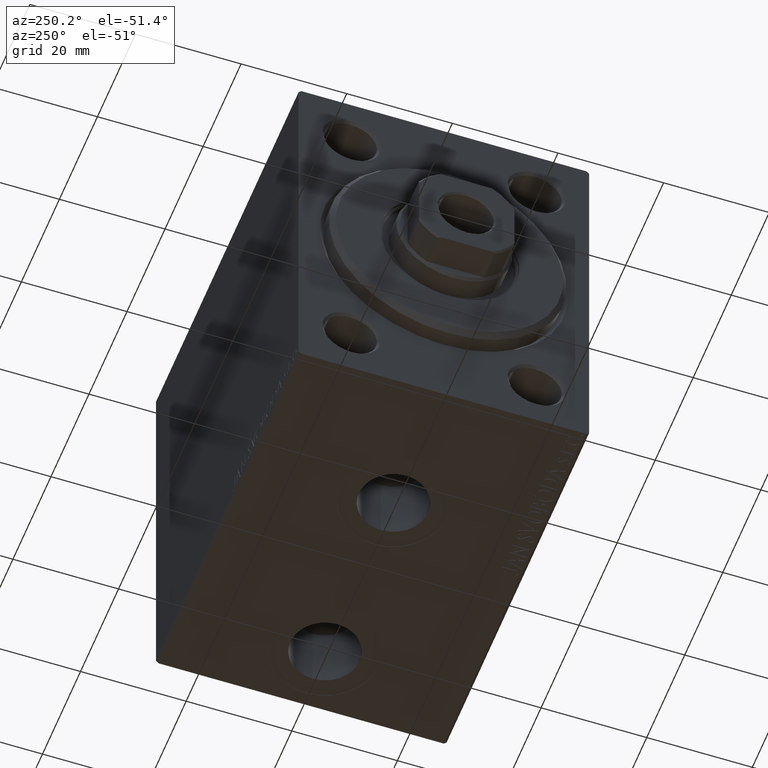
[diagram: clean part render]
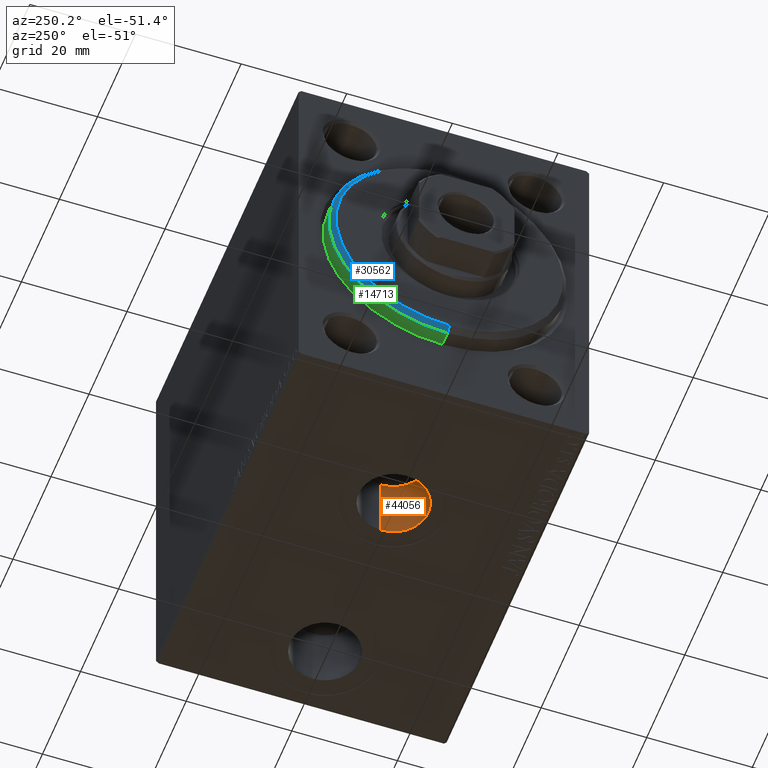
[diagram: same view with three faces highlighted in distinct colors, each labeled with its STEP entity id]
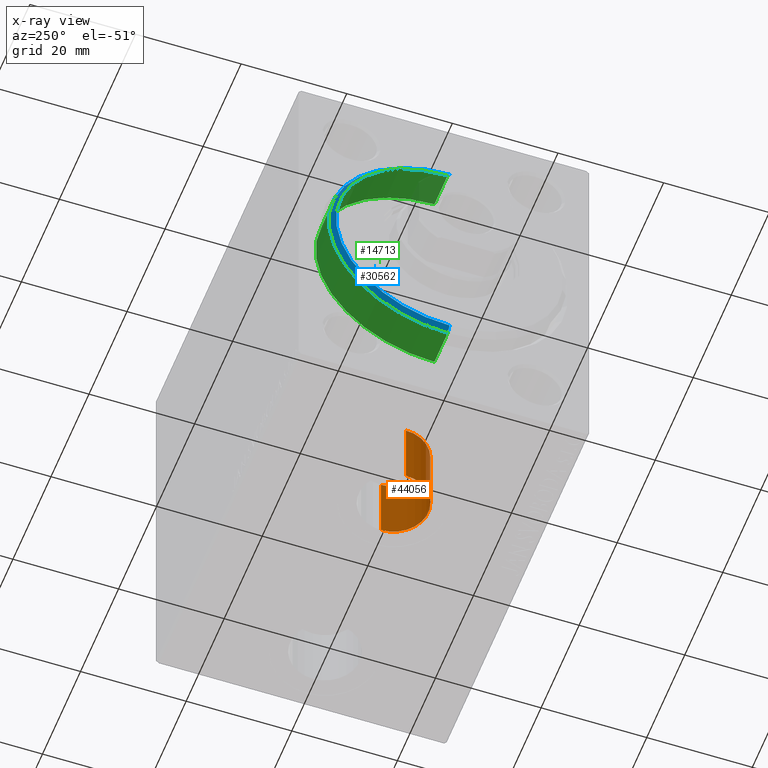
[diagram: x-ray of the same camera — body ghosted, the three highlighted faces saturated]
A machine part, auxiliary view with three faces highlighted in distinct colors.
The next image is the same camera in x-ray (body ghosted, the three faces saturated) — at least one of them is partly hidden behind the body in this view.
Their STEP definitions:

[orange] entity #44056 — the highlighted cylindrical surface (partial cylindrical patch) has radius 6.58 mm, axis along (-0, -0, -1).
#689 = AXIS2_PLACEMENT_3D ( 'NONE', #17921, #36126, #18149 ) ;
#1092 = EDGE_CURVE ( 'NONE', #19016, #7477, #20533, .T. ) ;
#1464 = CARTESIAN_POINT ( 'NONE',  ( 19.91999999999999815, -3.461774290897328353E-15, -37.39999999999999858 ) ) ;
#1988 = ORIENTED_EDGE ( 'NONE', *, *, #1092, .F. ) ;
#6185 = DIRECTION ( 'NONE',  ( -0.000000000000000000, -0.000000000000000000, -1.000000000000000000 ) ) ;
#7477 = VERTEX_POINT ( 'NONE', #45162 ) ;
#7992 = ORIENTED_EDGE ( 'NONE', *, *, #24941, .T. ) ;
#9879 = CARTESIAN_POINT ( 'NONE',  ( 19.91999999999999815, -3.461774290897328353E-15, -24.49999999999999289 ) ) ;
#11040 = CARTESIAN_POINT ( 'NONE',  ( 33.07999999999999829, -2.655956697058369706E-15, -24.49999999999999289 ) ) ;
#13972 = EDGE_CURVE ( 'NONE', #38701, #18247, #43784, .T. ) ;
#14313 = CYLINDRICAL_SURFACE ( 'NONE', #17682, 6.580000000000002736 ) ;
#14994 = CARTESIAN_POINT ( 'NONE',  ( 26.50000000000000000, -3.461774290897328353E-15, -24.49999999999999289 ) ) ;
#16559 = AXIS2_PLACEMENT_3D ( 'NONE', #31239, #17196, #41424 ) ;
#17196 = DIRECTION ( 'NONE',  ( 0.000000000000000000, 0.000000000000000000, -1.000000000000000000 ) ) ;
#17682 = AXIS2_PLACEMENT_3D ( 'NONE', #14994, #28334, #42421 ) ;
#17921 = CARTESIAN_POINT ( 'NONE',  ( 26.50000000000000000, -3.461774290897328353E-15, -24.49999999999999289 ) ) ;
#18149 = DIRECTION ( 'NONE',  ( -1.000000000000000000, 0.000000000000000000, 0.000000000000000000 ) ) ;
#18247 = VERTEX_POINT ( 'NONE', #1464 ) ;
#19016 = VERTEX_POINT ( 'NONE', #36037 ) ;
#20533 = CIRCLE ( 'NONE', #689, 6.580000000000002736 ) ;
#21504 = ORIENTED_EDGE ( 'NONE', *, *, #13972, .T. ) ;
#24268 = VECTOR ( 'NONE', #6185, 1000.000000000000000 ) ;
#24829 = LINE ( 'NONE', #11040, #44096 ) ;
#24941 = EDGE_CURVE ( 'NONE', #19016, #38701, #24829, .T. ) ;
#28334 = DIRECTION ( 'NONE',  ( -0.000000000000000000, -0.000000000000000000, -1.000000000000000000 ) ) ;
#30195 = EDGE_LOOP ( 'NONE', ( #1988, #7992, #21504, #43407 ) ) ;
#31239 = CARTESIAN_POINT ( 'NONE',  ( 26.50000000000000000, -3.461774290897328353E-15, -37.39999999999999858 ) ) ;
#31702 = CARTESIAN_POINT ( 'NONE',  ( 33.07999999999999829, -2.655956697058369311E-15, -37.39999999999999858 ) ) ;
#35254 = FACE_OUTER_BOUND ( 'NONE', #30195, .T. ) ;
#36037 = CARTESIAN_POINT ( 'NONE',  ( 33.07999999999999829, -2.655956697058369311E-15, -24.49999999999999289 ) ) ;
#36126 = DIRECTION ( 'NONE',  ( 0.000000000000000000, 0.000000000000000000, -1.000000000000000000 ) ) ;
#38426 = LINE ( 'NONE', #9879, #24268 ) ;
#38701 = VERTEX_POINT ( 'NONE', #31702 ) ;
#39830 = DIRECTION ( 'NONE',  ( -0.000000000000000000, -0.000000000000000000, -1.000000000000000000 ) ) ;
#41424 = DIRECTION ( 'NONE',  ( -1.000000000000000000, 0.000000000000000000, 0.000000000000000000 ) ) ;
#42421 = DIRECTION ( 'NONE',  ( -1.000000000000000000, 0.000000000000000000, 0.000000000000000000 ) ) ;
#42425 = EDGE_CURVE ( 'NONE', #7477, #18247, #38426, .T. ) ;
#43407 = ORIENTED_EDGE ( 'NONE', *, *, #42425, .F. ) ;
#43784 = CIRCLE ( 'NONE', #16559, 6.580000000000002736 ) ;
#44056 = ADVANCED_FACE ( 'NONE', ( #35254 ), #14313, .F. ) ;
#44096 = VECTOR ( 'NONE', #39830, 1000.000000000000000 ) ;
#45162 = CARTESIAN_POINT ( 'NONE',  ( 19.91999999999999815, -3.461774290897328353E-15, -24.49999999999999289 ) ) ;

[blue] entity #30562 — the highlighted conical surface has half-angle 45 deg.
#663 = CARTESIAN_POINT ( 'NONE',  ( 3.000000000000000000, 2.694222958124177598E-15, -21.50000000000000355 ) ) ;
#1452 = ORIENTED_EDGE ( 'NONE', *, *, #22409, .F. ) ;
#4574 = CARTESIAN_POINT ( 'NONE',  ( 1.999999999999999112, 0.000000000000000000, 22.50000000000000355 ) ) ;
#5570 = CARTESIAN_POINT ( 'NONE',  ( 3.000000000000000000, 0.000000000000000000, 0.000000000000000000 ) ) ;
#8387 = VERTEX_POINT ( 'NONE', #44669 ) ;
#10367 = LINE ( 'NONE', #32209, #36013 ) ;
#11856 = EDGE_LOOP ( 'NONE', ( #38633, #23159, #19713, #1452 ) ) ;
#12062 = EDGE_CURVE ( 'NONE', #40315, #8387, #37474, .T. ) ;
#12357 = AXIS2_PLACEMENT_3D ( 'NONE', #5570, #23280, #26280 ) ;
#18296 = CARTESIAN_POINT ( 'NONE',  ( 1.999999999999999112, 0.000000000000000000, 0.000000000000000000 ) ) ;
#19713 = ORIENTED_EDGE ( 'NONE', *, *, #40394, .T. ) ;
#21174 = AXIS2_PLACEMENT_3D ( 'NONE', #18296, #34497, #21750 ) ;
#21246 = FACE_OUTER_BOUND ( 'NONE', #11856, .T. ) ;
#21750 = DIRECTION ( 'NONE',  ( 0.000000000000000000, 0.000000000000000000, -1.000000000000000000 ) ) ;
#22409 = EDGE_CURVE ( 'NONE', #8387, #45325, #31458, .T. ) ;
#22761 = CONICAL_SURFACE ( 'NONE', #28634, 21.50000000000000355, 0.7853981633974466137 ) ;
#23159 = ORIENTED_EDGE ( 'NONE', *, *, #25985, .F. ) ;
#23280 = DIRECTION ( 'NONE',  ( 1.000000000000000000, -0.000000000000000000, 0.000000000000000000 ) ) ;
#25396 = CARTESIAN_POINT ( 'NONE',  ( 3.000000000000000000, 0.000000000000000000, 0.000000000000000000 ) ) ;
#25676 = CARTESIAN_POINT ( 'NONE',  ( 3.000000000000000000, 0.000000000000000000, 21.50000000000000355 ) ) ;
#25985 = EDGE_CURVE ( 'NONE', #31847, #40315, #44746, .T. ) ;
#26280 = DIRECTION ( 'NONE',  ( 0.000000000000000000, 0.000000000000000000, -1.000000000000000000 ) ) ;
#28634 = AXIS2_PLACEMENT_3D ( 'NONE', #25396, #38767, #29071 ) ;
#29071 = DIRECTION ( 'NONE',  ( 0.000000000000000000, 0.000000000000000000, 1.000000000000000000 ) ) ;
#30562 = ADVANCED_FACE ( 'NONE', ( #21246 ), #22761, .T. ) ;
#30992 = CARTESIAN_POINT ( 'NONE',  ( 3.000000000000000000, 2.632990618166810024E-15, -21.50000000000000355 ) ) ;
#31458 = CIRCLE ( 'NONE', #21174, 22.50000000000000355 ) ;
#31847 = VERTEX_POINT ( 'NONE', #25676 ) ;
#32209 = CARTESIAN_POINT ( 'NONE',  ( 3.000000000000000000, 0.000000000000000000, 21.50000000000000355 ) ) ;
#34497 = DIRECTION ( 'NONE',  ( -1.000000000000000000, 0.000000000000000000, 0.000000000000000000 ) ) ;
#34769 = DIRECTION ( 'NONE',  ( -0.7071067811865487940, 0.000000000000000000, 0.7071067811865463515 ) ) ;
#36013 = VECTOR ( 'NONE', #34769, 1000.000000000000000 ) ;
#37474 = LINE ( 'NONE', #30992, #44475 ) ;
#38633 = ORIENTED_EDGE ( 'NONE', *, *, #12062, .F. ) ;
#38767 = DIRECTION ( 'NONE',  ( -1.000000000000000000, 0.000000000000000000, 0.000000000000000000 ) ) ;
#40315 = VERTEX_POINT ( 'NONE', #663 ) ;
#40394 = EDGE_CURVE ( 'NONE', #31847, #45325, #10367, .T. ) ;
#40726 = DIRECTION ( 'NONE',  ( -0.7071067811865487940, 8.659560562354919300E-17, -0.7071067811865463515 ) ) ;
#44475 = VECTOR ( 'NONE', #40726, 1000.000000000000000 ) ;
#44669 = CARTESIAN_POINT ( 'NONE',  ( 1.999999999999999112, 2.755455298081545172E-15, -22.50000000000000355 ) ) ;
#44746 = CIRCLE ( 'NONE', #12357, 21.50000000000000355 ) ;
#45325 = VERTEX_POINT ( 'NONE', #4574 ) ;

[green] entity #14713 — the highlighted cylindrical surface (partial cylindrical patch) has radius 22.5 mm, axis along (1, -0, -0).
#289 = VERTEX_POINT ( 'NONE', #43274 ) ;
#660 = EDGE_CURVE ( 'NONE', #8387, #289, #15562, .T. ) ;
#2941 = CARTESIAN_POINT ( 'NONE',  ( 3.000000000000000000, 0.000000000000000000, 0.000000000000000000 ) ) ;
#3162 = ORIENTED_EDGE ( 'NONE', *, *, #660, .F. ) ;
#4574 = CARTESIAN_POINT ( 'NONE',  ( 1.999999999999999112, 0.000000000000000000, 22.50000000000000355 ) ) ;
#5563 = FACE_OUTER_BOUND ( 'NONE', #41107, .T. ) ;
#8387 = VERTEX_POINT ( 'NONE', #44669 ) ;
#8753 = CARTESIAN_POINT ( 'NONE',  ( 3.000000000000000000, 0.000000000000000000, 22.50000000000000355 ) ) ;
#12921 = AXIS2_PLACEMENT_3D ( 'NONE', #2941, #44279, #42109 ) ;
#14713 = ADVANCED_FACE ( 'NONE', ( #5563 ), #41653, .T. ) ;
#14800 = DIRECTION ( 'NONE',  ( -1.000000000000000000, 0.000000000000000000, 0.000000000000000000 ) ) ;
#14838 = ORIENTED_EDGE ( 'NONE', *, *, #19362, .F. ) ;
#15562 = LINE ( 'NONE', #29357, #29385 ) ;
#16684 = AXIS2_PLACEMENT_3D ( 'NONE', #25143, #14800, #39213 ) ;
#18296 = CARTESIAN_POINT ( 'NONE',  ( 1.999999999999999112, 0.000000000000000000, 0.000000000000000000 ) ) ;
#19362 = EDGE_CURVE ( 'NONE', #289, #31983, #36565, .T. ) ;
#21171 = VECTOR ( 'NONE', #29465, 1000.000000000000000 ) ;
#21174 = AXIS2_PLACEMENT_3D ( 'NONE', #18296, #34497, #21750 ) ;
#21750 = DIRECTION ( 'NONE',  ( 0.000000000000000000, 0.000000000000000000, -1.000000000000000000 ) ) ;
#22321 = LINE ( 'NONE', #8753, #21171 ) ;
#22409 = EDGE_CURVE ( 'NONE', #8387, #45325, #31458, .T. ) ;
#24477 = CARTESIAN_POINT ( 'NONE',  ( -5.000000000000000000, 0.000000000000000000, 22.50000000000000355 ) ) ;
#25143 = CARTESIAN_POINT ( 'NONE',  ( -5.000000000000000000, 0.000000000000000000, 0.000000000000000000 ) ) ;
#26288 = EDGE_CURVE ( 'NONE', #45325, #31983, #22321, .T. ) ;
#27104 = ORIENTED_EDGE ( 'NONE', *, *, #26288, .T. ) ;
#29357 = CARTESIAN_POINT ( 'NONE',  ( 3.000000000000000000, 2.755455298081545172E-15, -22.50000000000000355 ) ) ;
#29385 = VECTOR ( 'NONE', #36523, 1000.000000000000000 ) ;
#29465 = DIRECTION ( 'NONE',  ( -1.000000000000000000, -0.000000000000000000, -0.000000000000000000 ) ) ;
#31458 = CIRCLE ( 'NONE', #21174, 22.50000000000000355 ) ;
#31983 = VERTEX_POINT ( 'NONE', #24477 ) ;
#34497 = DIRECTION ( 'NONE',  ( -1.000000000000000000, 0.000000000000000000, 0.000000000000000000 ) ) ;
#36523 = DIRECTION ( 'NONE',  ( -1.000000000000000000, -0.000000000000000000, -0.000000000000000000 ) ) ;
#36565 = CIRCLE ( 'NONE', #16684, 22.50000000000000355 ) ;
#39213 = DIRECTION ( 'NONE',  ( 0.000000000000000000, 0.000000000000000000, 1.000000000000000000 ) ) ;
#40318 = ORIENTED_EDGE ( 'NONE', *, *, #22409, .T. ) ;
#41107 = EDGE_LOOP ( 'NONE', ( #3162, #40318, #27104, #14838 ) ) ;
#41653 = CYLINDRICAL_SURFACE ( 'NONE', #12921, 22.50000000000000355 ) ;
#42109 = DIRECTION ( 'NONE',  ( 0.000000000000000000, 0.000000000000000000, 1.000000000000000000 ) ) ;
#43274 = CARTESIAN_POINT ( 'NONE',  ( -5.000000000000000000, 2.755455298081545172E-15, -22.50000000000000355 ) ) ;
#44279 = DIRECTION ( 'NONE',  ( -1.000000000000000000, -0.000000000000000000, -0.000000000000000000 ) ) ;
#44669 = CARTESIAN_POINT ( 'NONE',  ( 1.999999999999999112, 2.755455298081545172E-15, -22.50000000000000355 ) ) ;
#45325 = VERTEX_POINT ( 'NONE', #4574 ) ;